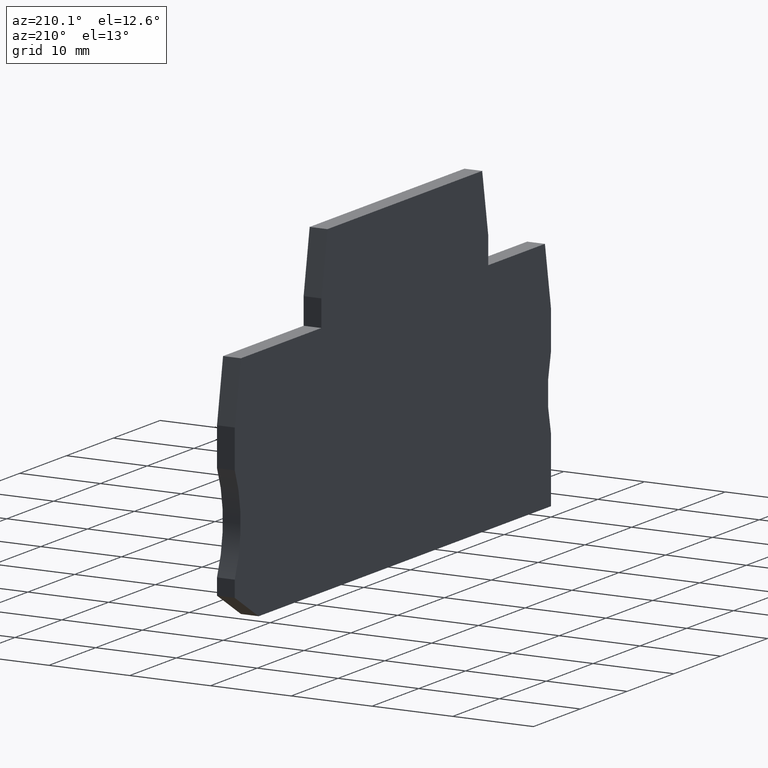
[diagram: clean part render]
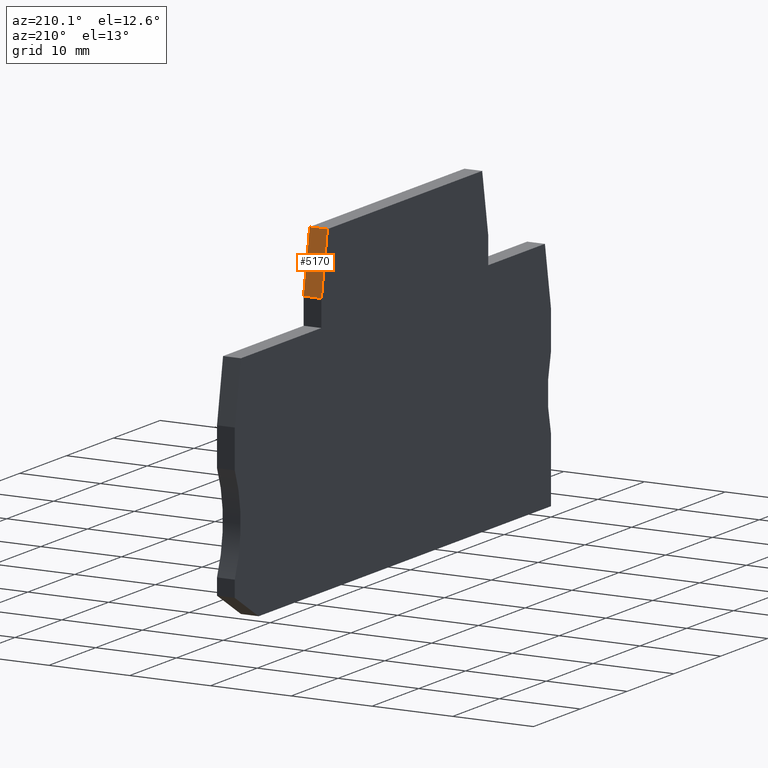
[diagram: same view with one face highlighted and labeled with its STEP entity id]
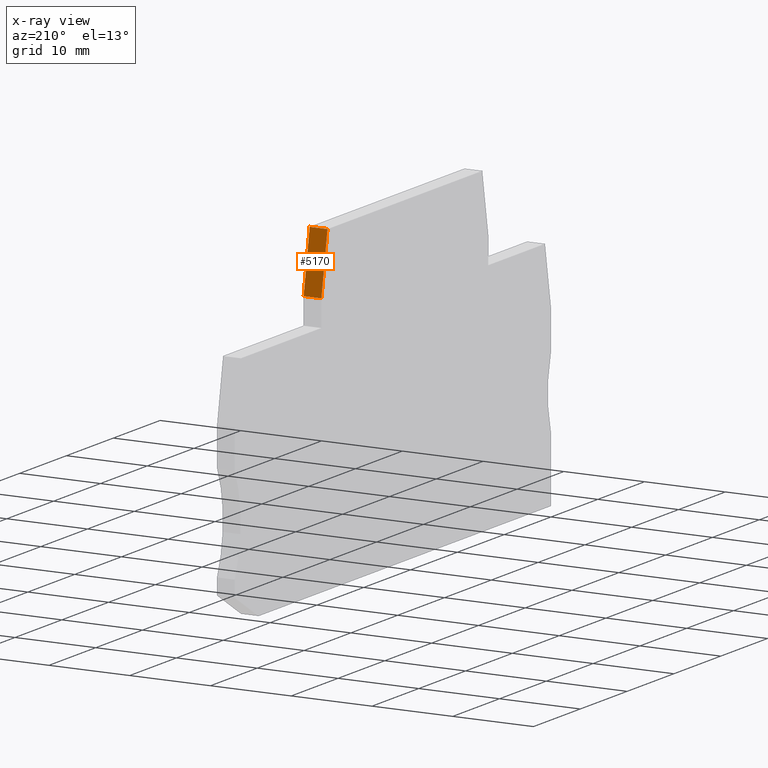
[diagram: x-ray of the same camera — body ghosted, the highlighted face saturated]
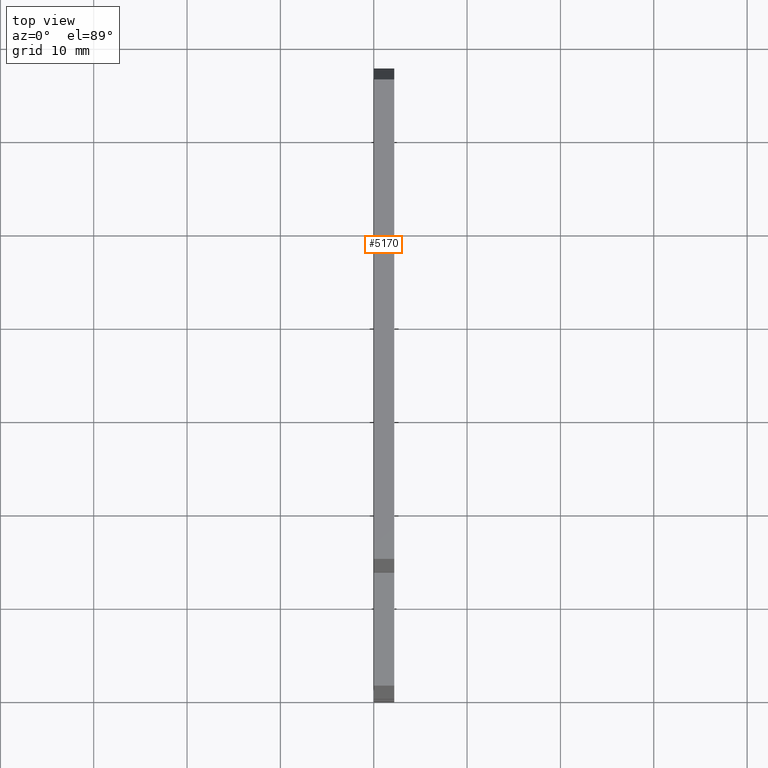
[diagram: same view with one face highlighted and labeled with its STEP entity id]
A machine part, auxiliary view. The second image highlights one B-rep face of the part: STEP entity #5170.
The next image is the same camera in x-ray: the body ghosted, the highlighted face saturated — about 0% of this face is hidden behind the body in this view.
A second angle (top view) of the same face is appended — the face is thin or edge-on in the first view.
In plain terms, the highlighted planar face has unit normal (-0, 0.9848, 0.1736).
Its self-contained STEP definition (entity closure, byte-faithful):
#100=CARTESIAN_POINT('',(96.9073958539173,-5.90000000010878,53.67));
#110=VERTEX_POINT('',#100);
#280=CARTESIAN_POINT('',(96.9073958539173,-5.90000000010878,55.87));
#290=VERTEX_POINT('',#280);
#320=CARTESIAN_POINT('',(96.9073958539173,-5.90000000010878,53.67));
#330=DIRECTION('',(0.,0.,1.));
#340=VECTOR('',#330,1.);
#350=LINE('',#320,#340);
#360=EDGE_CURVE('',#110,#290,#350,.T.);
#3770=CARTESIAN_POINT('',(95.6113925456925,1.44999999999058,55.87));
#3780=VERTEX_POINT('',#3770);
#3810=CARTESIAN_POINT('',(97.9729362717797,-11.94298,55.87));
#3820=DIRECTION('',(-0.173648177666931,0.984807753012208,0.));
#3830=VECTOR('',#3820,1.);
#3840=LINE('',#3810,#3830);
#3850=EDGE_CURVE('',#290,#3780,#3840,.T.);
#4940=CARTESIAN_POINT('',(95.6113925456925,1.44999999999058,53.67));
#4950=DIRECTION('',(0.984807753012208,0.173648177666931,0.));
#4960=DIRECTION('',(0.173648177666931,-0.984807753012208,0.));
#4970=AXIS2_PLACEMENT_3D('',#4940,#4950,#4960);
#4980=PLANE('',#4970);
#4990=CARTESIAN_POINT('',(97.9729362717797,-11.94298,53.67));
#5000=DIRECTION('',(0.173648177666931,-0.984807753012208,0.));
#5010=VECTOR('',#5000,1.);
#5020=LINE('',#4990,#5010);
#5030=CARTESIAN_POINT('',(95.6113925456925,1.44999999999058,53.67));
#5040=VERTEX_POINT('',#5030);
#5050=EDGE_CURVE('',#5040,#110,#5020,.T.);
#5060=ORIENTED_EDGE('',*,*,#5050,.F.);
#5070=ORIENTED_EDGE('',*,*,#360,.F.);
#5080=ORIENTED_EDGE('',*,*,#3850,.F.);
#5090=CARTESIAN_POINT('',(95.6113925456925,1.44999999999058,53.67));
#5100=DIRECTION('',(0.,0.,1.));
#5110=VECTOR('',#5100,1.);
#5120=LINE('',#5090,#5110);
#5130=EDGE_CURVE('',#5040,#3780,#5120,.T.);
#5140=ORIENTED_EDGE('',*,*,#5130,.T.);
#5150=EDGE_LOOP('',(#5140,#5080,#5070,#5060));
#5160=FACE_OUTER_BOUND('',#5150,.T.);
#5170=ADVANCED_FACE('',(#5160),#4980,.T.);